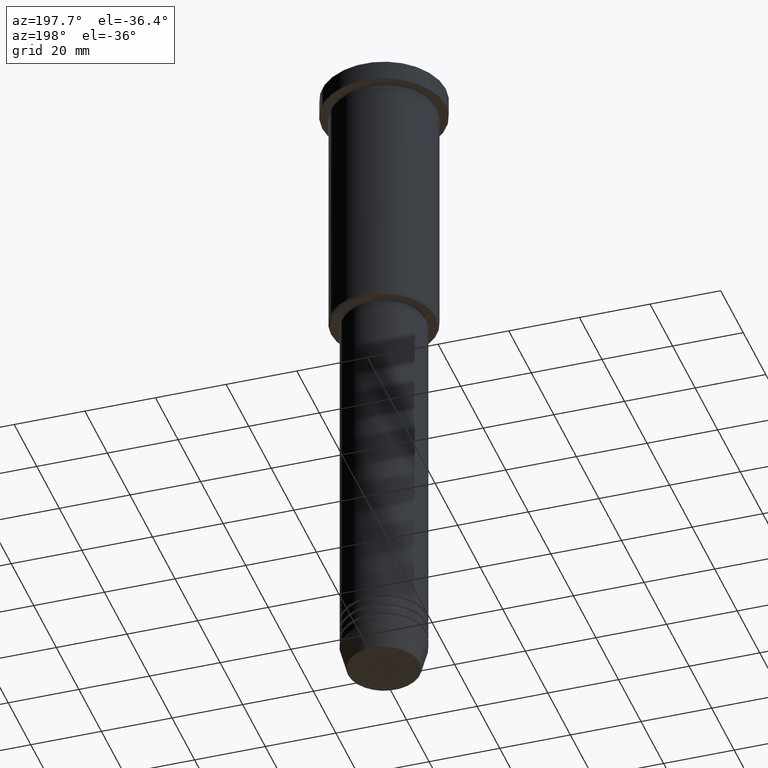
[diagram: clean part render]
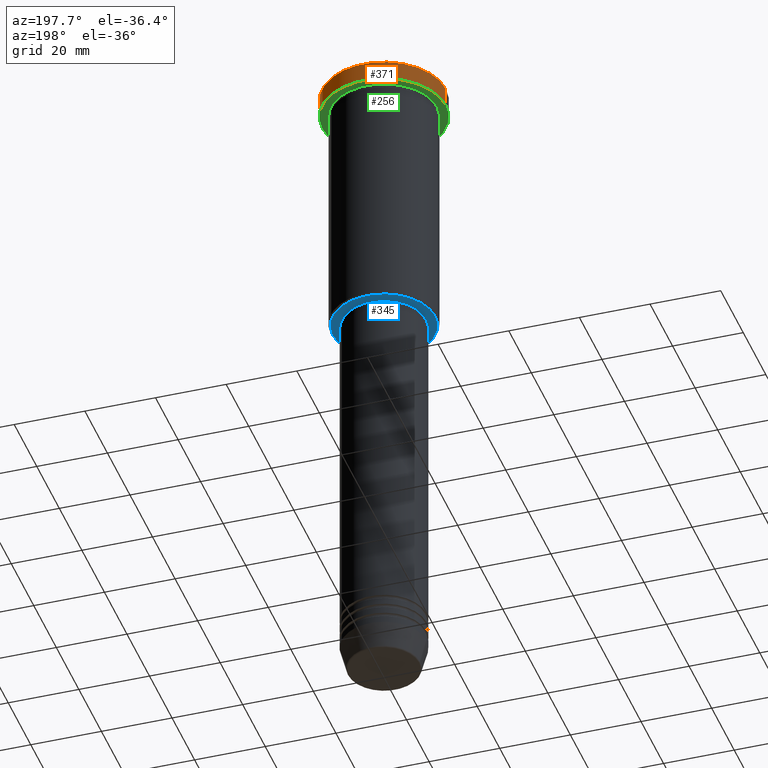
[diagram: same view with three faces highlighted in distinct colors, each labeled with its STEP entity id]
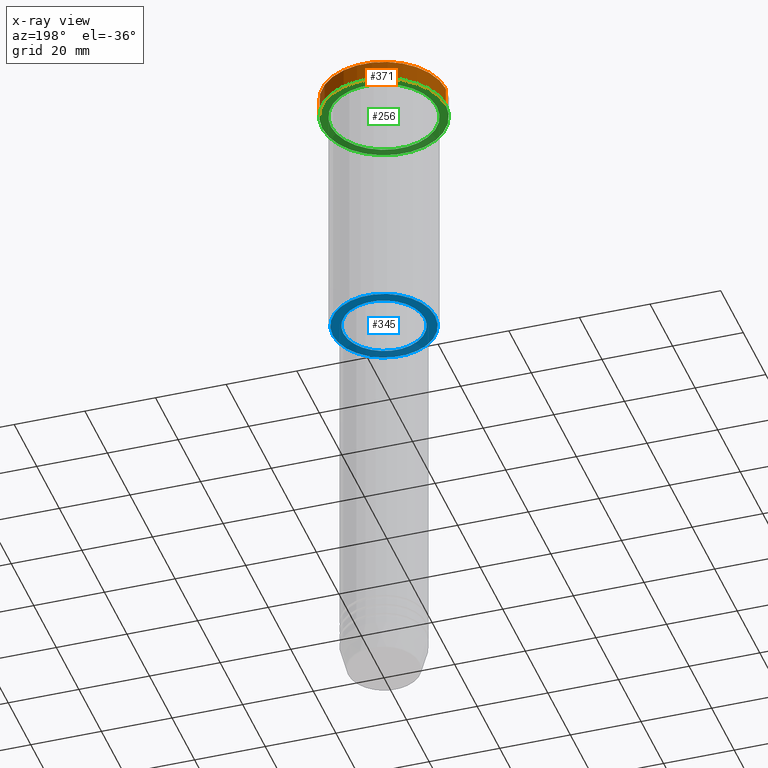
[diagram: x-ray of the same camera — body ghosted, the three highlighted faces saturated]
A machine part, auxiliary view with three faces highlighted in distinct colors.
The next image is the same camera in x-ray (body ghosted, the three faces saturated) — at least one of them is partly hidden behind the body in this view.
Their STEP definitions:

[orange] entity #371 — the highlighted cylindrical surface (partial cylindrical patch) has radius 17.5 mm, axis along (-0, -0, 1).
#5 = LINE ( 'NONE', #972, #758 ) ;
#8 = CYLINDRICAL_SURFACE ( 'NONE', #497, 17.50000000000000000 ) ;
#43 = EDGE_CURVE ( 'NONE', #358, #688, #1001, .T. ) ;
#50 = DIRECTION ( 'NONE',  ( 1.000000000000000000, 0.000000000000000000, 0.000000000000000000 ) ) ;
#53 = LINE ( 'NONE', #785, #402 ) ;
#152 = DIRECTION ( 'NONE',  ( 1.000000000000000000, 0.000000000000000000, 0.000000000000000000 ) ) ;
#155 = DIRECTION ( 'NONE',  ( -0.000000000000000000, -0.000000000000000000, 1.000000000000000000 ) ) ;
#261 = VERTEX_POINT ( 'NONE', #303 ) ;
#282 = EDGE_CURVE ( 'NONE', #524, #261, #1094, .T. ) ;
#284 = CARTESIAN_POINT ( 'NONE',  ( 0.000000000000000000, 0.000000000000000000, -5.999999999999995559 ) ) ;
#303 = CARTESIAN_POINT ( 'NONE',  ( 17.50000000000000000, 0.000000000000000000, -0.5000000000000003331 ) ) ;
#327 = DIRECTION ( 'NONE',  ( 0.000000000000000000, 0.000000000000000000, -1.000000000000000000 ) ) ;
#358 = VERTEX_POINT ( 'NONE', #367 ) ;
#367 = CARTESIAN_POINT ( 'NONE',  ( 17.50000000000000000, 0.000000000000000000, -5.999999999999995559 ) ) ;
#371 = ADVANCED_FACE ( 'NONE', ( #836 ), #8, .T. ) ;
#389 = CARTESIAN_POINT ( 'NONE',  ( 0.000000000000000000, 0.000000000000000000, 0.000000000000000000 ) ) ;
#391 = DIRECTION ( 'NONE',  ( -0.000000000000000000, -0.000000000000000000, 1.000000000000000000 ) ) ;
#402 = VECTOR ( 'NONE', #155, 1000.000000000000000 ) ;
#485 = ORIENTED_EDGE ( 'NONE', *, *, #599, .F. ) ;
#497 = AXIS2_PLACEMENT_3D ( 'NONE', #389, #1081, #727 ) ;
#524 = VERTEX_POINT ( 'NONE', #843 ) ;
#579 = ORIENTED_EDGE ( 'NONE', *, *, #43, .T. ) ;
#599 = EDGE_CURVE ( 'NONE', #358, #261, #53, .T. ) ;
#612 = EDGE_LOOP ( 'NONE', ( #579, #846, #1026, #485 ) ) ;
#688 = VERTEX_POINT ( 'NONE', #977 ) ;
#700 = DIRECTION ( 'NONE',  ( -0.000000000000000000, -0.000000000000000000, 1.000000000000000000 ) ) ;
#727 = DIRECTION ( 'NONE',  ( 1.000000000000000000, 0.000000000000000000, 0.000000000000000000 ) ) ;
#758 = VECTOR ( 'NONE', #700, 1000.000000000000000 ) ;
#785 = CARTESIAN_POINT ( 'NONE',  ( 17.50000000000000000, 0.000000000000000000, 0.000000000000000000 ) ) ;
#836 = FACE_OUTER_BOUND ( 'NONE', #612, .T. ) ;
#843 = CARTESIAN_POINT ( 'NONE',  ( -17.50000000000000000, 2.143131898507868248E-15, -0.5000000000000003331 ) ) ;
#846 = ORIENTED_EDGE ( 'NONE', *, *, #988, .T. ) ;
#972 = CARTESIAN_POINT ( 'NONE',  ( -17.50000000000000000, 2.143131898507868248E-15, 0.000000000000000000 ) ) ;
#977 = CARTESIAN_POINT ( 'NONE',  ( -17.50000000000000000, 2.143131898507868248E-15, -5.999999999999995559 ) ) ;
#988 = EDGE_CURVE ( 'NONE', #688, #524, #5, .T. ) ;
#1001 = CIRCLE ( 'NONE', #1093, 17.50000000000000000 ) ;
#1019 = AXIS2_PLACEMENT_3D ( 'NONE', #1126, #327, #152 ) ;
#1026 = ORIENTED_EDGE ( 'NONE', *, *, #282, .T. ) ;
#1081 = DIRECTION ( 'NONE',  ( -0.000000000000000000, -0.000000000000000000, 1.000000000000000000 ) ) ;
#1093 = AXIS2_PLACEMENT_3D ( 'NONE', #284, #391, #50 ) ;
#1094 = CIRCLE ( 'NONE', #1019, 17.50000000000000000 ) ;
#1126 = CARTESIAN_POINT ( 'NONE',  ( 0.000000000000000000, 0.000000000000000000, -0.5000000000000003331 ) ) ;

[blue] entity #345 — the highlighted planar face has unit normal (0, 0, -1).
#7 = VERTEX_POINT ( 'NONE', #1145 ) ;
#24 = AXIS2_PLACEMENT_3D ( 'NONE', #1051, #230, #605 ) ;
#40 = CIRCLE ( 'NONE', #664, 11.50000000000000000 ) ;
#93 = FACE_OUTER_BOUND ( 'NONE', #1085, .T. ) ;
#147 = EDGE_LOOP ( 'NONE', ( #1143, #558 ) ) ;
#189 = ORIENTED_EDGE ( 'NONE', *, *, #839, .T. ) ;
#198 = CIRCLE ( 'NONE', #24, 14.49999999999998401 ) ;
#219 = AXIS2_PLACEMENT_3D ( 'NONE', #943, #570, #220 ) ;
#220 = DIRECTION ( 'NONE',  ( -1.000000000000000000, 0.000000000000000000, 0.000000000000000000 ) ) ;
#227 = DIRECTION ( 'NONE',  ( 1.000000000000000000, 0.000000000000000000, 0.000000000000000000 ) ) ;
#230 = DIRECTION ( 'NONE',  ( 0.000000000000000000, 0.000000000000000000, -1.000000000000000000 ) ) ;
#239 = VERTEX_POINT ( 'NONE', #1053 ) ;
#345 = ADVANCED_FACE ( 'NONE', ( #93, #808 ), #635, .T. ) ;
#349 = VERTEX_POINT ( 'NONE', #1104 ) ;
#494 = CARTESIAN_POINT ( 'NONE',  ( -11.50000000000000000, 1.408343819019456176E-15, -76.00000000000001421 ) ) ;
#502 = CIRCLE ( 'NONE', #628, 11.50000000000000000 ) ;
#506 = DIRECTION ( 'NONE',  ( 1.000000000000000000, 0.000000000000000000, 0.000000000000000000 ) ) ;
#530 = AXIS2_PLACEMENT_3D ( 'NONE', #740, #901, #1163 ) ;
#558 = ORIENTED_EDGE ( 'NONE', *, *, #571, .T. ) ;
#570 = DIRECTION ( 'NONE',  ( 0.000000000000000000, 0.000000000000000000, -1.000000000000000000 ) ) ;
#571 = EDGE_CURVE ( 'NONE', #864, #239, #40, .T. ) ;
#605 = DIRECTION ( 'NONE',  ( -1.000000000000000000, 0.000000000000000000, 0.000000000000000000 ) ) ;
#628 = AXIS2_PLACEMENT_3D ( 'NONE', #975, #877, #506 ) ;
#635 = PLANE ( 'NONE',  #530 ) ;
#664 = AXIS2_PLACEMENT_3D ( 'NONE', #1057, #1155, #227 ) ;
#699 = EDGE_CURVE ( 'NONE', #349, #7, #198, .T. ) ;
#740 = CARTESIAN_POINT ( 'NONE',  ( 0.000000000000000000, 15.00000000000000000, -76.00000000000001421 ) ) ;
#808 = FACE_BOUND ( 'NONE', #147, .T. ) ;
#839 = EDGE_CURVE ( 'NONE', #7, #349, #1096, .T. ) ;
#864 = VERTEX_POINT ( 'NONE', #494 ) ;
#877 = DIRECTION ( 'NONE',  ( -0.000000000000000000, -0.000000000000000000, 1.000000000000000000 ) ) ;
#901 = DIRECTION ( 'NONE',  ( 0.000000000000000000, 0.000000000000000000, -1.000000000000000000 ) ) ;
#943 = CARTESIAN_POINT ( 'NONE',  ( 0.000000000000000000, 0.000000000000000000, -76.00000000000001421 ) ) ;
#975 = CARTESIAN_POINT ( 'NONE',  ( 0.000000000000000000, 0.000000000000000000, -76.00000000000001421 ) ) ;
#991 = ORIENTED_EDGE ( 'NONE', *, *, #699, .T. ) ;
#1051 = CARTESIAN_POINT ( 'NONE',  ( 0.000000000000000000, 0.000000000000000000, -76.00000000000001421 ) ) ;
#1053 = CARTESIAN_POINT ( 'NONE',  ( 11.50000000000000000, 0.000000000000000000, -76.00000000000001421 ) ) ;
#1057 = CARTESIAN_POINT ( 'NONE',  ( 0.000000000000000000, 0.000000000000000000, -76.00000000000001421 ) ) ;
#1085 = EDGE_LOOP ( 'NONE', ( #189, #991 ) ) ;
#1089 = EDGE_CURVE ( 'NONE', #239, #864, #502, .T. ) ;
#1096 = CIRCLE ( 'NONE', #219, 14.49999999999998401 ) ;
#1104 = CARTESIAN_POINT ( 'NONE',  ( -14.49999999999998401, 1.806354028742345013E-15, -76.00000000000001421 ) ) ;
#1143 = ORIENTED_EDGE ( 'NONE', *, *, #1089, .T. ) ;
#1145 = CARTESIAN_POINT ( 'NONE',  ( 14.49999999999998401, 0.000000000000000000, -76.00000000000001421 ) ) ;
#1155 = DIRECTION ( 'NONE',  ( -0.000000000000000000, -0.000000000000000000, 1.000000000000000000 ) ) ;
#1163 = DIRECTION ( 'NONE',  ( -1.000000000000000000, 0.000000000000000000, -0.000000000000000000 ) ) ;

[green] entity #256 — the highlighted planar face has unit normal (0, 0, -1).
#36 = VERTEX_POINT ( 'NONE', #153 ) ;
#43 = EDGE_CURVE ( 'NONE', #358, #688, #1001, .T. ) ;
#50 = DIRECTION ( 'NONE',  ( 1.000000000000000000, 0.000000000000000000, 0.000000000000000000 ) ) ;
#64 = EDGE_LOOP ( 'NONE', ( #270, #1146 ) ) ;
#75 = AXIS2_PLACEMENT_3D ( 'NONE', #272, #654, #363 ) ;
#111 = EDGE_LOOP ( 'NONE', ( #936, #941 ) ) ;
#139 = CARTESIAN_POINT ( 'NONE',  ( 0.000000000000000000, 0.000000000000000000, -5.999999999999995559 ) ) ;
#153 = CARTESIAN_POINT ( 'NONE',  ( 15.00000000000000000, 1.836970198721029589E-15, -5.999999999999994671 ) ) ;
#200 = CIRCLE ( 'NONE', #1076, 15.00000000000000000 ) ;
#235 = DIRECTION ( 'NONE',  ( -0.000000000000000000, -0.000000000000000000, 1.000000000000000000 ) ) ;
#237 = AXIS2_PLACEMENT_3D ( 'NONE', #690, #1153, #244 ) ;
#244 = DIRECTION ( 'NONE',  ( -1.000000000000000000, 0.000000000000000000, 0.000000000000000000 ) ) ;
#256 = ADVANCED_FACE ( 'NONE', ( #682, #1042 ), #917, .T. ) ;
#270 = ORIENTED_EDGE ( 'NONE', *, *, #43, .F. ) ;
#272 = CARTESIAN_POINT ( 'NONE',  ( 0.000000000000000000, 17.50000000000000000, -5.999999999999995559 ) ) ;
#284 = CARTESIAN_POINT ( 'NONE',  ( 0.000000000000000000, 0.000000000000000000, -5.999999999999995559 ) ) ;
#317 = DIRECTION ( 'NONE',  ( -0.000000000000000000, -0.000000000000000000, 1.000000000000000000 ) ) ;
#337 = CIRCLE ( 'NONE', #1006, 17.50000000000000000 ) ;
#350 = VERTEX_POINT ( 'NONE', #919 ) ;
#358 = VERTEX_POINT ( 'NONE', #367 ) ;
#363 = DIRECTION ( 'NONE',  ( -1.000000000000000000, 0.000000000000000000, -0.000000000000000000 ) ) ;
#367 = CARTESIAN_POINT ( 'NONE',  ( 17.50000000000000000, 0.000000000000000000, -5.999999999999995559 ) ) ;
#391 = DIRECTION ( 'NONE',  ( -0.000000000000000000, -0.000000000000000000, 1.000000000000000000 ) ) ;
#461 = CIRCLE ( 'NONE', #237, 15.00000000000000000 ) ;
#525 = DIRECTION ( 'NONE',  ( -1.000000000000000000, 0.000000000000000000, 0.000000000000000000 ) ) ;
#654 = DIRECTION ( 'NONE',  ( 0.000000000000000000, 0.000000000000000000, -1.000000000000000000 ) ) ;
#682 = FACE_BOUND ( 'NONE', #111, .T. ) ;
#688 = VERTEX_POINT ( 'NONE', #977 ) ;
#690 = CARTESIAN_POINT ( 'NONE',  ( 0.000000000000000000, 0.000000000000000000, -5.999999999999995559 ) ) ;
#917 = PLANE ( 'NONE',  #75 ) ;
#919 = CARTESIAN_POINT ( 'NONE',  ( -15.00000000000000000, 0.000000000000000000, -5.999999999999994671 ) ) ;
#936 = ORIENTED_EDGE ( 'NONE', *, *, #1087, .T. ) ;
#941 = ORIENTED_EDGE ( 'NONE', *, *, #1005, .T. ) ;
#961 = DIRECTION ( 'NONE',  ( 1.000000000000000000, 0.000000000000000000, 0.000000000000000000 ) ) ;
#977 = CARTESIAN_POINT ( 'NONE',  ( -17.50000000000000000, 2.143131898507868248E-15, -5.999999999999995559 ) ) ;
#1001 = CIRCLE ( 'NONE', #1093, 17.50000000000000000 ) ;
#1005 = EDGE_CURVE ( 'NONE', #36, #350, #461, .T. ) ;
#1006 = AXIS2_PLACEMENT_3D ( 'NONE', #1061, #317, #961 ) ;
#1018 = EDGE_CURVE ( 'NONE', #688, #358, #337, .T. ) ;
#1042 = FACE_OUTER_BOUND ( 'NONE', #64, .T. ) ;
#1061 = CARTESIAN_POINT ( 'NONE',  ( 0.000000000000000000, 0.000000000000000000, -5.999999999999995559 ) ) ;
#1076 = AXIS2_PLACEMENT_3D ( 'NONE', #139, #235, #525 ) ;
#1087 = EDGE_CURVE ( 'NONE', #350, #36, #200, .T. ) ;
#1093 = AXIS2_PLACEMENT_3D ( 'NONE', #284, #391, #50 ) ;
#1146 = ORIENTED_EDGE ( 'NONE', *, *, #1018, .F. ) ;
#1153 = DIRECTION ( 'NONE',  ( -0.000000000000000000, -0.000000000000000000, 1.000000000000000000 ) ) ;